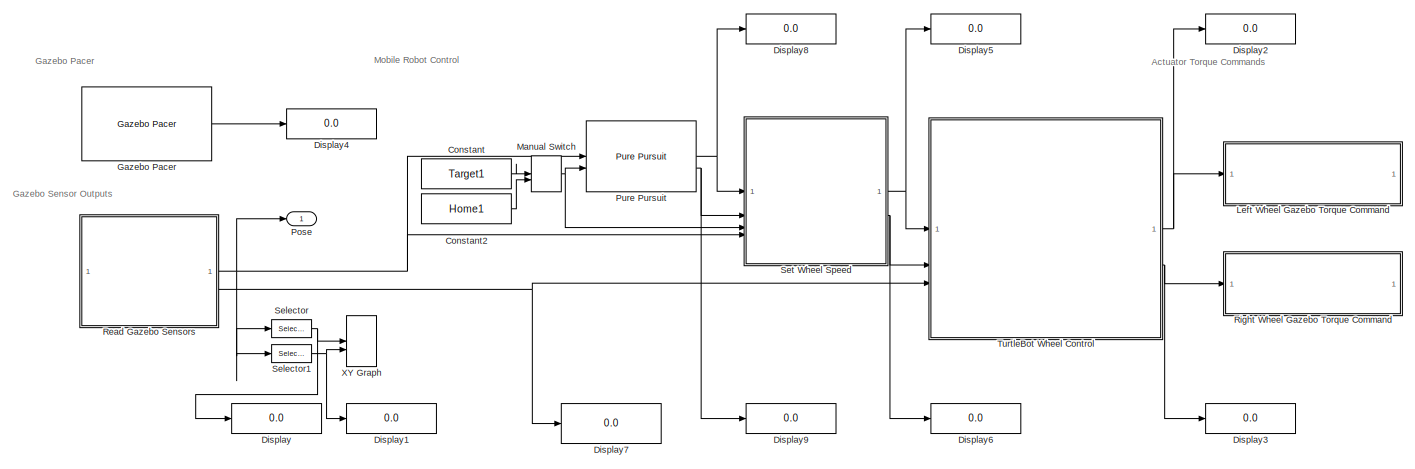
[diagram: root canvas - part 1/2, full width, top band]
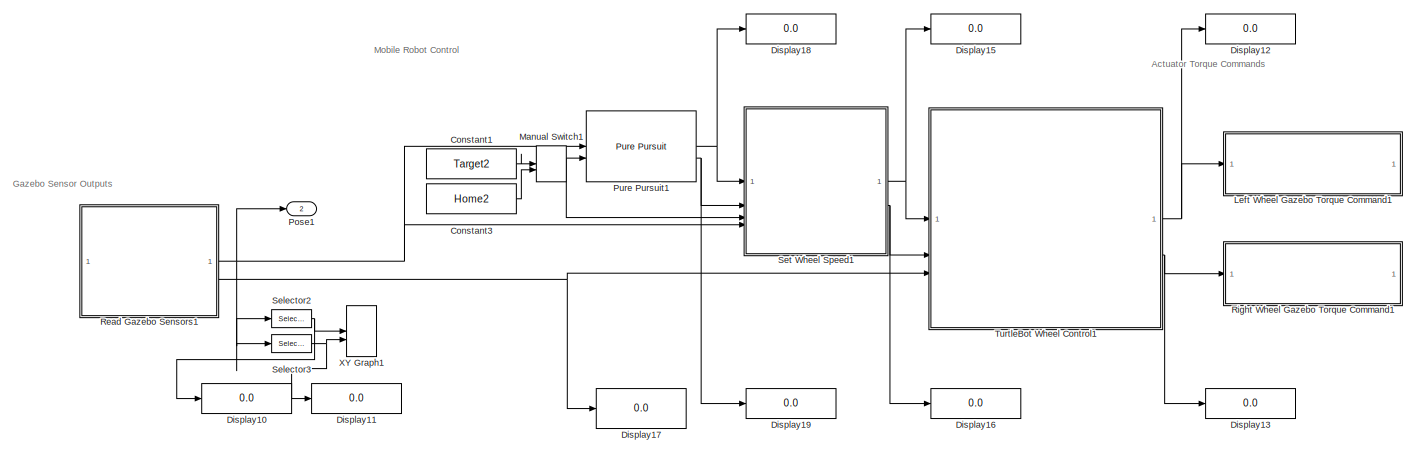
[diagram: root canvas - part 2/2, full width, bottom band]
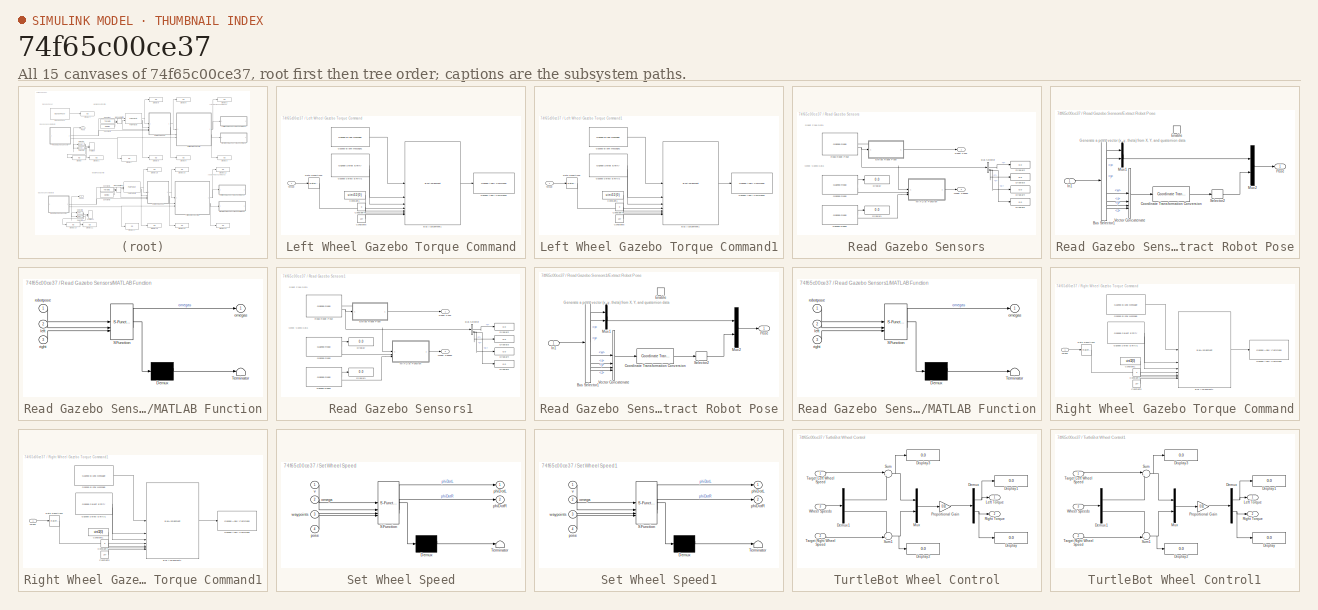
[diagram: thumbnail index - all 15 canvases of the model, root first then tree order]
MODEL slx_74f65c00ce37
KIND model
CONFIG AbsTol = auto
CONFIG EnableMultiTasking = off
CONFIG FixedStep = auto
CONFIG MaxStep = auto
CONFIG MinStep = auto
CONFIG RelTol = 1e-3
CONFIG SampleTimeConstraint = Unconstrained
CONFIG SolverName = VariableStepAuto
CONFIG StartTime = 0.0
CONFIG StopFcn = robotPoses = out.yout{1}.Values.Data;\n\nfigure;\nplot(waypoints(:,1), waypoints(:,2), 'k-x');\nhold all\nplot(robotPoses(:,1), robotPoses(:,2));\ntitle('XY Waypoint Tracking');\n
CONFIG StopTime = 50
BLOCK [Constant] Constant
  Value = Target1
BLOCK [Constant] Constant1
  Value = Target2
BLOCK [Constant] Constant2
  Value = Home1
BLOCK [Constant] Constant3
  Value = Home2
BLOCK [Display] Display
  Decimation = 1
BLOCK [Display] Display1
  Decimation = 1
BLOCK [Display] Display10
  Decimation = 1
BLOCK [Display] Display11
  Decimation = 1
BLOCK [Display] Display12
  Decimation = 1
BLOCK [Display] Display13
  Decimation = 1
BLOCK [Display] Display15
  Decimation = 1
BLOCK [Display] Display16
  Decimation = 1
BLOCK [Display] Display17
  Decimation = 1
BLOCK [Display] Display18
  Decimation = 1
BLOCK [Display] Display19
  Decimation = 1
BLOCK [Display] Display2
  Decimation = 1
BLOCK [Display] Display3
  Decimation = 1
BLOCK [Display] Display4
  Decimation = 1
BLOCK [Display] Display5
  Decimation = 1
BLOCK [Display] Display6
  Decimation = 1
BLOCK [Display] Display7
  Decimation = 1
BLOCK [Display] Display8
  Decimation = 1
BLOCK [Display] Display9
  Decimation = 1
BLOCK [Reference] Gazebo Pacer  REF=robotgazebolib/Gazebo Pacer
  SourceBlock = robotgazebolib/Gazebo Pacer
  SourceType = Gazebo Pacer
BLOCK [SubSystem] Left Wheel Gazebo Torque Command
BLOCK [BusAssignment] Left Wheel Gazebo Torque Command/Bus Assignment1
  AssignedSignals = model_name,joint_name,effort,index,duration.seconds,duration.nano_seconds
BLOCK [Constant] Left Wheel Gazebo Torque Command/Constant1
  Value = uint32(0)
BLOCK [Constant] Left Wheel Gazebo Torque Command/Constant4
  Value = 0
BLOCK [Constant] Left Wheel Gazebo Torque Command/Constant5
  Value = 1e7
BLOCK [Reference] Left Wheel Gazebo Torque Command/Gazebo Apply Command1  REF=robotgazebolib/Gazebo Apply Command
  SourceBlock = robotgazebolib/Gazebo Apply Command
  SourceType = Gazebo Apply Command
BLOCK [Reference] Left Wheel Gazebo Torque Command/Gazebo Blank Message1  REF=robotgazebolib/Gazebo Blank Message
  SourceBlock = robotgazebolib/Gazebo Blank Message
  SourceType = Gazebo Blank Message
BLOCK [Reference] Left Wheel Gazebo Torque Command/Gazebo Select Entity1  REF=robotgazebolib/Gazebo Select Entity
  SourceBlock = robotgazebolib/Gazebo Select Entity
  SourceType = Gazebo Select Entity
BLOCK [RateTransition] Left Wheel Gazebo Torque Command/Rate Transition2
BLOCK [Inport] Left Wheel Gazebo Torque Command/Torque
BLOCK [SubSystem] Left Wheel Gazebo Torque Command1
BLOCK [BusAssignment] Left Wheel Gazebo Torque Command1/Bus Assignment1
  AssignedSignals = model_name,joint_name,effort,index,duration.seconds,duration.nano_seconds
BLOCK [Constant] Left Wheel Gazebo Torque Command1/Constant1
  Value = uint32(0)
BLOCK [Constant] Left Wheel Gazebo Torque Command1/Constant4
  Value = 0
BLOCK [Constant] Left Wheel Gazebo Torque Command1/Constant5
  Value = 1e7
BLOCK [Reference] Left Wheel Gazebo Torque Command1/Gazebo Apply Command1  REF=robotgazebolib/Gazebo Apply Command
  SourceBlock = robotgazebolib/Gazebo Apply Command
  SourceType = Gazebo Apply Command
BLOCK [Reference] Left Wheel Gazebo Torque Command1/Gazebo Blank Message1  REF=robotgazebolib/Gazebo Blank Message
  SourceBlock = robotgazebolib/Gazebo Blank Message
  SourceType = Gazebo Blank Message
BLOCK [Reference] Left Wheel Gazebo Torque Command1/Gazebo Select Entity1  REF=robotgazebolib/Gazebo Select Entity
  SourceBlock = robotgazebolib/Gazebo Select Entity
  SourceType = Gazebo Select Entity
BLOCK [RateTransition] Left Wheel Gazebo Torque Command1/Rate Transition2
BLOCK [Inport] Left Wheel Gazebo Torque Command1/Torque
BLOCK [ManualSwitch] Manual Switch
  CurrentSetting = 0
  varsize = on
BLOCK [ManualSwitch] Manual Switch1
  CurrentSetting = 0
  varsize = on
BLOCK [Outport] Pose
BLOCK [Outport] Pose1
  Port = 2
BLOCK [Reference] Pure Pursuit  REF=robotalgslib/Pure Pursuit
  SourceBlock = robotalgslib/Pure Pursuit
  SourceType = nav.slalgs.internal.PurePursuit
BLOCK [Reference] Pure Pursuit1  REF=robotalgslib/Pure Pursuit
  SourceBlock = robotalgslib/Pure Pursuit
  SourceType = nav.slalgs.internal.PurePursuit
BLOCK [SubSystem] Read Gazebo Sensors
BLOCK [BusSelector] Read Gazebo Sensors/Bus Selector
  OutputSignals = orientation.x,orientation.y,orientation.z,orientation.w
BLOCK [Display] Read Gazebo Sensors/Display
  Decimation = 1
BLOCK [Display] Read Gazebo Sensors/Display1
  Decimation = 1
BLOCK [Display] Read Gazebo Sensors/Display2
  Decimation = 1
BLOCK [Display] Read Gazebo Sensors/Display3
  Decimation = 1
BLOCK [Display] Read Gazebo Sensors/Display4
  Decimation = 1
BLOCK [Display] Read Gazebo Sensors/Display5
  Decimation = 1
BLOCK [SubSystem] Read Gazebo Sensors/Extract Robot Pose
BLOCK [BusSelector] Read Gazebo Sensors/Extract Robot Pose/Bus Selector1
  OutputSignals = position.x,position.y,orientation.w,orientation.x,orientation.y,orientation.z
BLOCK [Reference] Read Gazebo Sensors/Extract Robot Pose/Coordinate Transformation Conversion  REF=robotcorelib/Coordinate Transformation Conversion
  SourceBlock = robotcorelib/Coordinate Transformation Conversion
  SourceType = robotics.slcore.internal.block.CoordinateTransformationConversion
BLOCK [EnablePort] Read Gazebo Sensors/Extract Robot Pose/Enable
BLOCK [Inport] Read Gazebo Sensors/Extract Robot Pose/In1
BLOCK [Mux] Read Gazebo Sensors/Extract Robot Pose/Mux1
  DisplayOption = bar
  Inputs = 2
BLOCK [Mux] Read Gazebo Sensors/Extract Robot Pose/Mux2
  DisplayOption = bar
  Inputs = 2
BLOCK [Outport] Read Gazebo Sensors/Extract Robot Pose/Pose
  VectorParamsAs1DForOutWhenUnconnected = off
BLOCK [Selector] Read Gazebo Sensors/Extract Robot Pose/Selector2
  IndexOptions = Index vector (dialog)
  Indices = 1
  InputPortWidth = 3
  OutputSizes = 1
BLOCK [Concatenate] Read Gazebo Sensors/Extract Robot Pose/Vector Concatenate
  NumInputs = 4
BLOCK [Reference] Read Gazebo Sensors/Gazebo Read  REF=robotgazebolib/Gazebo Read
  SourceBlock = robotgazebolib/Gazebo Read
  SourceType = Gazebo Read
BLOCK [Reference] Read Gazebo Sensors/Gazebo Read1  REF=robotgazebolib/Gazebo Read
  SourceBlock = robotgazebolib/Gazebo Read
  SourceType = Gazebo Read
BLOCK [SubSystem] Read Gazebo Sensors/MATLAB Function
  ErrorFcn = Stateflow.Translate.translate
  PermitHierarchicalResolution = ExplicitOnly
  SFBlockType = MATLAB Function
  TreatAsAtomicUnit = on
BLOCK [Demux] Read Gazebo Sensors/MATLAB Function/ Demux 
  Outputs = 1
BLOCK [S-Function] Read Gazebo Sensors/MATLAB Function/ SFunction 
  EnableBusSupport = on
  FunctionName = sf_sfun
  PortCounts = [3 2]
  SFcnIsStateOwnerBlock = off
  SFunctionDeploymentMode = off
  Tag = Stateflow S-Function 1
BLOCK [Terminator] Read Gazebo Sensors/MATLAB Function/ Terminator 
BLOCK [Inport] Read Gazebo Sensors/MATLAB Function/left
  Port = 2
BLOCK [Outport] Read Gazebo Sensors/MATLAB Function/omegas
BLOCK [Inport] Read Gazebo Sensors/MATLAB Function/right
  Port = 3
BLOCK [Inport] Read Gazebo Sensors/MATLAB Function/robotpose
BLOCK [Reference] Read Gazebo Sensors/Read Robot Pose  REF=robotgazebolib/Gazebo Read
  SourceBlock = robotgazebolib/Gazebo Read
  SourceType = Gazebo Read
BLOCK [Outport] Read Gazebo Sensors/Robot Pose
BLOCK [Outport] Read Gazebo Sensors/Wheel Speeds
  Port = 2
BLOCK [SubSystem] Read Gazebo Sensors1
BLOCK [BusSelector] Read Gazebo Sensors1/Bus Selector
  OutputSignals = orientation.x,orientation.y,orientation.z,orientation.w
BLOCK [Display] Read Gazebo Sensors1/Display
  Decimation = 1
BLOCK [Display] Read Gazebo Sensors1/Display1
  Decimation = 1
BLOCK [Display] Read Gazebo Sensors1/Display2
  Decimation = 1
BLOCK [Display] Read Gazebo Sensors1/Display3
  Decimation = 1
BLOCK [Display] Read Gazebo Sensors1/Display4
  Decimation = 1
BLOCK [Display] Read Gazebo Sensors1/Display5
  Decimation = 1
BLOCK [SubSystem] Read Gazebo Sensors1/Extract Robot Pose
BLOCK [BusSelector] Read Gazebo Sensors1/Extract Robot Pose/Bus Selector1
  OutputSignals = position.x,position.y,orientation.w,orientation.x,orientation.y,orientation.z
BLOCK [Reference] Read Gazebo Sensors1/Extract Robot Pose/Coordinate Transformation Conversion  REF=robotcorelib/Coordinate Transformation Conversion
  SourceBlock = robotcorelib/Coordinate Transformation Conversion
  SourceType = robotics.slcore.internal.block.CoordinateTransformationConversion
BLOCK [EnablePort] Read Gazebo Sensors1/Extract Robot Pose/Enable
BLOCK [Inport] Read Gazebo Sensors1/Extract Robot Pose/In1
BLOCK [Mux] Read Gazebo Sensors1/Extract Robot Pose/Mux1
  DisplayOption = bar
  Inputs = 2
BLOCK [Mux] Read Gazebo Sensors1/Extract Robot Pose/Mux2
  DisplayOption = bar
  Inputs = 2
BLOCK [Outport] Read Gazebo Sensors1/Extract Robot Pose/Pose
  VectorParamsAs1DForOutWhenUnconnected = off
BLOCK [Selector] Read Gazebo Sensors1/Extract Robot Pose/Selector2
  IndexOptions = Index vector (dialog)
  Indices = 1
  InputPortWidth = 3
  OutputSizes = 1
BLOCK [Concatenate] Read Gazebo Sensors1/Extract Robot Pose/Vector Concatenate
  NumInputs = 4
BLOCK [Reference] Read Gazebo Sensors1/Gazebo Read  REF=robotgazebolib/Gazebo Read
  SourceBlock = robotgazebolib/Gazebo Read
  SourceType = Gazebo Read
BLOCK [Reference] Read Gazebo Sensors1/Gazebo Read1  REF=robotgazebolib/Gazebo Read
  SourceBlock = robotgazebolib/Gazebo Read
  SourceType = Gazebo Read
BLOCK [SubSystem] Read Gazebo Sensors1/MATLAB Function
  ErrorFcn = Stateflow.Translate.translate
  PermitHierarchicalResolution = ExplicitOnly
  SFBlockType = MATLAB Function
  TreatAsAtomicUnit = on
BLOCK [Demux] Read Gazebo Sensors1/MATLAB Function/ Demux 
  Outputs = 1
BLOCK [S-Function] Read Gazebo Sensors1/MATLAB Function/ SFunction 
  EnableBusSupport = on
  FunctionName = sf_sfun
  PortCounts = [3 2]
  SFcnIsStateOwnerBlock = off
  SFunctionDeploymentMode = off
  Tag = Stateflow S-Function 3
BLOCK [Terminator] Read Gazebo Sensors1/MATLAB Function/ Terminator 
BLOCK [Inport] Read Gazebo Sensors1/MATLAB Function/left
  Port = 2
BLOCK [Outport] Read Gazebo Sensors1/MATLAB Function/omegas
BLOCK [Inport] Read Gazebo Sensors1/MATLAB Function/right
  Port = 3
BLOCK [Inport] Read Gazebo Sensors1/MATLAB Function/robotpose
BLOCK [Reference] Read Gazebo Sensors1/Read Robot Pose  REF=robotgazebolib/Gazebo Read
  SourceBlock = robotgazebolib/Gazebo Read
  SourceType = Gazebo Read
BLOCK [Outport] Read Gazebo Sensors1/Robot Pose
BLOCK [Outport] Read Gazebo Sensors1/Wheel Speeds
  Port = 2
BLOCK [SubSystem] Right Wheel Gazebo Torque Command
BLOCK [BusAssignment] Right Wheel Gazebo Torque Command/Bus Assignment1
  AssignedSignals = model_name,joint_name,effort,index,duration.seconds,duration.nano_seconds
BLOCK [Constant] Right Wheel Gazebo Torque Command/Constant1
  Value = uint32(0)
BLOCK [Constant] Right Wheel Gazebo Torque Command/Constant4
  Value = 0
BLOCK [Constant] Right Wheel Gazebo Torque Command/Constant5
  Value = 1e7
BLOCK [Reference] Right Wheel Gazebo Torque Command/Gazebo Apply Command  REF=robotgazebolib/Gazebo Apply Command
  SourceBlock = robotgazebolib/Gazebo Apply Command
  SourceType = Gazebo Apply Command
BLOCK [Reference] Right Wheel Gazebo Torque Command/Gazebo Blank Message  REF=robotgazebolib/Gazebo Blank Message
  SourceBlock = robotgazebolib/Gazebo Blank Message
  SourceType = Gazebo Blank Message
BLOCK [Reference] Right Wheel Gazebo Torque Command/Gazebo Select Entity1  REF=robotgazebolib/Gazebo Select Entity
  SourceBlock = robotgazebolib/Gazebo Select Entity
  SourceType = Gazebo Select Entity
BLOCK [RateTransition] Right Wheel Gazebo Torque Command/Rate Transition2
BLOCK [Inport] Right Wheel Gazebo Torque Command/Torque
BLOCK [SubSystem] Right Wheel Gazebo Torque Command1
BLOCK [BusAssignment] Right Wheel Gazebo Torque Command1/Bus Assignment1
  AssignedSignals = model_name,joint_name,effort,index,duration.seconds,duration.nano_seconds
BLOCK [Constant] Right Wheel Gazebo Torque Command1/Constant1
  Value = uint32(0)
BLOCK [Constant] Right Wheel Gazebo Torque Command1/Constant4
  Value = 0
BLOCK [Constant] Right Wheel Gazebo Torque Command1/Constant5
  Value = 1e7
BLOCK [Reference] Right Wheel Gazebo Torque Command1/Gazebo Apply Command  REF=robotgazebolib/Gazebo Apply Command
  SourceBlock = robotgazebolib/Gazebo Apply Command
  SourceType = Gazebo Apply Command
BLOCK [Reference] Right Wheel Gazebo Torque Command1/Gazebo Blank Message  REF=robotgazebolib/Gazebo Blank Message
  SourceBlock = robotgazebolib/Gazebo Blank Message
  SourceType = Gazebo Blank Message
BLOCK [Reference] Right Wheel Gazebo Torque Command1/Gazebo Select Entity1  REF=robotgazebolib/Gazebo Select Entity
  SourceBlock = robotgazebolib/Gazebo Select Entity
  SourceType = Gazebo Select Entity
BLOCK [RateTransition] Right Wheel Gazebo Torque Command1/Rate Transition2
BLOCK [Inport] Right Wheel Gazebo Torque Command1/Torque
BLOCK [Selector] Selector
  IndexOptions = Index vector (dialog)
  Indices = [1]
  InputPortWidth = 3
  OutputSizes = 1
BLOCK [Selector] Selector1
  IndexOptions = Index vector (dialog)
  Indices = [2]
  InputPortWidth = 3
  OutputSizes = 1
BLOCK [Selector] Selector2
  IndexOptions = Index vector (dialog)
  Indices = [1]
  InputPortWidth = 3
  OutputSizes = 1
BLOCK [Selector] Selector3
  IndexOptions = Index vector (dialog)
  Indices = [2]
  InputPortWidth = 3
  OutputSizes = 1
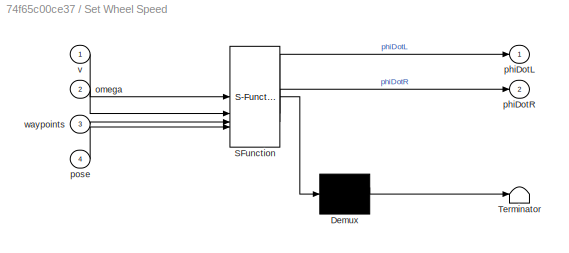
BLOCK [SubSystem] Set Wheel Speed
  ErrorFcn = Stateflow.Translate.translate
  PermitHierarchicalResolution = ExplicitOnly
  SFBlockType = MATLAB Function
  TreatAsAtomicUnit = on
BLOCK [Demux] Set Wheel Speed/ Demux 
  Outputs = 1
BLOCK [S-Function] Set Wheel Speed/ SFunction 
  EnableBusSupport = on
  FunctionName = sf_sfun
  PortCounts = [4 3]
  SFcnIsStateOwnerBlock = off
  SFunctionDeploymentMode = off
  Tag = Stateflow S-Function 2
BLOCK [Terminator] Set Wheel Speed/ Terminator 
BLOCK [Inport] Set Wheel Speed/omega
  Port = 2
BLOCK [Outport] Set Wheel Speed/phiDotL
BLOCK [Outport] Set Wheel Speed/phiDotR
  Port = 2
BLOCK [Inport] Set Wheel Speed/pose
  Port = 4
BLOCK [Inport] Set Wheel Speed/v
BLOCK [Inport] Set Wheel Speed/waypoints
  Port = 3
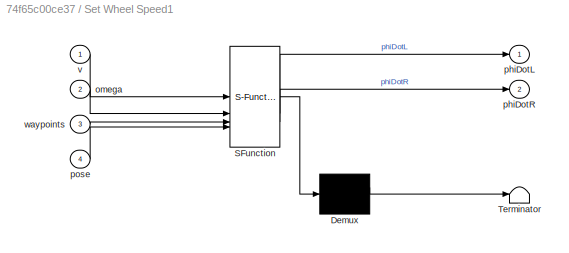
BLOCK [SubSystem] Set Wheel Speed1
  ErrorFcn = Stateflow.Translate.translate
  PermitHierarchicalResolution = ExplicitOnly
  SFBlockType = MATLAB Function
  TreatAsAtomicUnit = on
BLOCK [Demux] Set Wheel Speed1/ Demux 
  Outputs = 1
BLOCK [S-Function] Set Wheel Speed1/ SFunction 
  EnableBusSupport = on
  FunctionName = sf_sfun
  PortCounts = [4 3]
  SFcnIsStateOwnerBlock = off
  SFunctionDeploymentMode = off
  Tag = Stateflow S-Function 4
BLOCK [Terminator] Set Wheel Speed1/ Terminator 
BLOCK [Inport] Set Wheel Speed1/omega
  Port = 2
BLOCK [Outport] Set Wheel Speed1/phiDotL
BLOCK [Outport] Set Wheel Speed1/phiDotR
  Port = 2
BLOCK [Inport] Set Wheel Speed1/pose
  Port = 4
BLOCK [Inport] Set Wheel Speed1/v
BLOCK [Inport] Set Wheel Speed1/waypoints
  Port = 3
BLOCK [SubSystem] TurtleBot Wheel Control
BLOCK [Demux] TurtleBot Wheel Control/Demux
  Outputs = 2
BLOCK [Demux] TurtleBot Wheel Control/Demux1
  Outputs = 2
BLOCK [Display] TurtleBot Wheel Control/Display
  Decimation = 1
BLOCK [Display] TurtleBot Wheel Control/Display1
  Decimation = 1
BLOCK [Display] TurtleBot Wheel Control/Display2
  Decimation = 1
BLOCK [Display] TurtleBot Wheel Control/Display3
  Decimation = 1
BLOCK [Outport] TurtleBot Wheel Control/Left Torque
BLOCK [Mux] TurtleBot Wheel Control/Mux
  DisplayOption = bar
  Inputs = 2
BLOCK [Gain] TurtleBot Wheel Control/Proportional Gain
  Gain = 0.02
BLOCK [Outport] TurtleBot Wheel Control/Right Torque
  Port = 2
BLOCK [Sum] TurtleBot Wheel Control/Sum
  Inputs = |+-
BLOCK [Sum] TurtleBot Wheel Control/Sum1
  Inputs = -+|
BLOCK [Inport] TurtleBot Wheel Control/Target Left Wheel Speed
BLOCK [Inport] TurtleBot Wheel Control/Target Right Wheel Speed
  Port = 2
BLOCK [Inport] TurtleBot Wheel Control/Wheel Speeds
  Port = 3
BLOCK [SubSystem] TurtleBot Wheel Control1
BLOCK [Demux] TurtleBot Wheel Control1/Demux
  Outputs = 2
BLOCK [Demux] TurtleBot Wheel Control1/Demux1
  Outputs = 2
BLOCK [Display] TurtleBot Wheel Control1/Display
  Decimation = 1
BLOCK [Display] TurtleBot Wheel Control1/Display1
  Decimation = 1
BLOCK [Display] TurtleBot Wheel Control1/Display2
  Decimation = 1
BLOCK [Display] TurtleBot Wheel Control1/Display3
  Decimation = 1
BLOCK [Outport] TurtleBot Wheel Control1/Left Torque
BLOCK [Mux] TurtleBot Wheel Control1/Mux
  DisplayOption = bar
  Inputs = 2
BLOCK [Gain] TurtleBot Wheel Control1/Proportional Gain
  Gain = 0.02
BLOCK [Outport] TurtleBot Wheel Control1/Right Torque
  Port = 2
BLOCK [Sum] TurtleBot Wheel Control1/Sum
  Inputs = |+-
BLOCK [Sum] TurtleBot Wheel Control1/Sum1
  Inputs = -+|
BLOCK [Inport] TurtleBot Wheel Control1/Target Left Wheel Speed
BLOCK [Inport] TurtleBot Wheel Control1/Target Right Wheel Speed
  Port = 2
BLOCK [Inport] TurtleBot Wheel Control1/Wheel Speeds
  Port = 3
BLOCK [Record] XY Graph
  CompatibilityTag = XY
  FileSettingsInternal = {"entries":[{"content":{"excelSettings":{"content":{},"type":"Streamout.ExcelSettings"}},"type":"Streamout.FileSettingStorage","uuid":"9b76d6df-f2ee-41ae-a897-859777477549"}],"packageUris":["http://schema.mathworks.com/mf0/streamout_blocks/R2020a"],"version":"1.0"}
  Layout = [1 1]
  SignalsInternal = {"entries":[{"content":{"signals":[{"content":{"blockPath":["TurtleBot3_GazeboDifferentialDriveControl/XY Graph"],"channel":[],"dimensions":[1],"domain":"TurtleBot3_GazeboDifferentialDriveControl/XY Graph","lineColor":"#a2142f","plots":[1],"port":1,"sid":[""],"signalID":45,"signalName":"Selector"},"type":"RecordBlkView.Signal","uuid":"7043024c-e0bb-448a-8998-882d1dee7e41"},{"content":{"blockPath":...<+494ch>
  VisualizationBindings = {"xyplotplugin":{"info":[{"series":[{"bindingParametersList":[{"parameter":"X-Axis","signalID":45,"signalName":"Selector"},{"parameter":"Y-Axis","signalID":49,"signalName":"Selector1"}],"seriesID":8786}],"subplotID":1}]}}
  st = -1
BLOCK [Record] XY Graph1
  CompatibilityTag = XY
  FileSettingsInternal = {"entries":[{"content":{"excelSettings":{"content":{},"type":"Streamout.ExcelSettings"}},"type":"Streamout.FileSettingStorage","uuid":"365f15dd-1235-4737-b409-36fc80b55155"}],"packageUris":["http://schema.mathworks.com/mf0/streamout_blocks/R2020a"],"version":"1.0"}
  Layout = [1 1]
  SignalsInternal = {"entries":[{"content":{"signals":[{"content":{"blockPath":["TurtleBot3_GazeboDifferentialDriveControl/XY Graph1"],"channel":[],"dimensions":[1],"domain":"TurtleBot3_GazeboDifferentialDriveControl/XY Graph1","lineColor":"#0072bd","plots":[1],"port":1,"sid":[""],"signalID":71,"signalName":"Selector2"},"type":"RecordBlkView.Signal","uuid":"75e92f67-50e1-4949-aba3-fae04aa0850f"},{"content":{"blockPat...<+499ch>
  VisualizationBindings = {"xyplotplugin":{"info":[{"series":[{"bindingParametersList":[{"parameter":"X-Axis","signalID":71,"signalName":"Selector2"},{"parameter":"Y-Axis","signalID":75,"signalName":"Selector3"}],"seriesID":2754}],"subplotID":1}]}}
  st = -1
ANNOTATION (root): Actuator Torque Commands
ANNOTATION (root): Gazebo Pacer
ANNOTATION (root): Gazebo Sensor Outputs
ANNOTATION (root): Mobile Robot Control
ANNOTATION Read Gazebo Sensors: Robot Pose Data
ANNOTATION Read Gazebo Sensors: Wheel Speed Data
ANNOTATION Read Gazebo Sensors/Extract Robot Pose: Generate a pose vector (x, y, theta) from X, Y, and quaternion data
ANNOTATION Read Gazebo Sensors1: Robot Pose Data
ANNOTATION Read Gazebo Sensors1: Wheel Speed Data
ANNOTATION Read Gazebo Sensors1/Extract Robot Pose: Generate a pose vector (x, y, theta) from X, Y, and quaternion data
LINE Constant1:1 -> Manual Switch1:1
LINE Constant2:1 -> Manual Switch:2
LINE Constant3:1 -> Manual Switch1:2
LINE Constant:1 -> Manual Switch:1
LINE Gazebo Pacer:1 -> Display4:1
LINE Left Wheel Gazebo Torque Command/Bus Assignment1:1 -> Left Wheel Gazebo Torque Command/Gazebo Apply Command1:1
LINE Left Wheel Gazebo Torque Command/Constant1:1 -> Left Wheel Gazebo Torque Command/Bus Assignment1:5
LINE Left Wheel Gazebo Torque Command/Constant4:1 -> Left Wheel Gazebo Torque Command/Bus Assignment1:6
LINE Left Wheel Gazebo Torque Command/Constant5:1 -> Left Wheel Gazebo Torque Command/Bus Assignment1:7
LINE Left Wheel Gazebo Torque Command/Gazebo Blank Message1:1 -> Left Wheel Gazebo Torque Command/Bus Assignment1:1
LINE Left Wheel Gazebo Torque Command/Gazebo Select Entity1:1 -> Left Wheel Gazebo Torque Command/Bus Assignment1:2
LINE Left Wheel Gazebo Torque Command/Gazebo Select Entity1:2 -> Left Wheel Gazebo Torque Command/Bus Assignment1:3
LINE Left Wheel Gazebo Torque Command/Rate Transition2:1 -> Left Wheel Gazebo Torque Command/Bus Assignment1:4
LINE Left Wheel Gazebo Torque Command/Torque:1 -> Left Wheel Gazebo Torque Command/Rate Transition2:1
LINE Left Wheel Gazebo Torque Command1/Bus Assignment1:1 -> Left Wheel Gazebo Torque Command1/Gazebo Apply Command1:1
LINE Left Wheel Gazebo Torque Command1/Constant1:1 -> Left Wheel Gazebo Torque Command1/Bus Assignment1:5
LINE Left Wheel Gazebo Torque Command1/Constant4:1 -> Left Wheel Gazebo Torque Command1/Bus Assignment1:6
LINE Left Wheel Gazebo Torque Command1/Constant5:1 -> Left Wheel Gazebo Torque Command1/Bus Assignment1:7
LINE Left Wheel Gazebo Torque Command1/Gazebo Blank Message1:1 -> Left Wheel Gazebo Torque Command1/Bus Assignment1:1
LINE Left Wheel Gazebo Torque Command1/Gazebo Select Entity1:1 -> Left Wheel Gazebo Torque Command1/Bus Assignment1:2
LINE Left Wheel Gazebo Torque Command1/Gazebo Select Entity1:2 -> Left Wheel Gazebo Torque Command1/Bus Assignment1:3
LINE Left Wheel Gazebo Torque Command1/Rate Transition2:1 -> Left Wheel Gazebo Torque Command1/Bus Assignment1:4
LINE Left Wheel Gazebo Torque Command1/Torque:1 -> Left Wheel Gazebo Torque Command1/Rate Transition2:1
NET Manual Switch1:1 -> Pure Pursuit1:2, Set Wheel Speed1:3
NET Manual Switch:1 -> Pure Pursuit:2, Set Wheel Speed:3
NET Pure Pursuit1:1 -> Display18:1, Set Wheel Speed1:1
NET Pure Pursuit1:2 -> Display19:1, Set Wheel Speed1:2
NET Pure Pursuit:1 -> Display8:1, Set Wheel Speed:1
NET Pure Pursuit:2 -> Display9:1, Set Wheel Speed:2
LINE Read Gazebo Sensors/Bus Selector:1 -> Read Gazebo Sensors/Display2:1
LINE Read Gazebo Sensors/Bus Selector:2 -> Read Gazebo Sensors/Display3:1
LINE Read Gazebo Sensors/Bus Selector:3 -> Read Gazebo Sensors/Display4:1
LINE Read Gazebo Sensors/Bus Selector:4 -> Read Gazebo Sensors/Display5:1
LINE Read Gazebo Sensors/Extract Robot Pose/Bus Selector1:1 -> Read Gazebo Sensors/Extract Robot Pose/Mux1:1
LINE Read Gazebo Sensors/Extract Robot Pose/Bus Selector1:2 -> Read Gazebo Sensors/Extract Robot Pose/Mux1:2
LINE Read Gazebo Sensors/Extract Robot Pose/Bus Selector1:3 -> Read Gazebo Sensors/Extract Robot Pose/Vector Concatenate:1
LINE Read Gazebo Sensors/Extract Robot Pose/Bus Selector1:4 -> Read Gazebo Sensors/Extract Robot Pose/Vector Concatenate:2
LINE Read Gazebo Sensors/Extract Robot Pose/Bus Selector1:5 -> Read Gazebo Sensors/Extract Robot Pose/Vector Concatenate:3
LINE Read Gazebo Sensors/Extract Robot Pose/Bus Selector1:6 -> Read Gazebo Sensors/Extract Robot Pose/Vector Concatenate:4
LINE Read Gazebo Sensors/Extract Robot Pose/Coordinate Transformation Conversion:1 -> Read Gazebo Sensors/Extract Robot Pose/Selector2:1
LINE Read Gazebo Sensors/Extract Robot Pose/In1:1 -> Read Gazebo Sensors/Extract Robot Pose/Bus Selector1:1
LINE Read Gazebo Sensors/Extract Robot Pose/Mux1:1 -> Read Gazebo Sensors/Extract Robot Pose/Mux2:1
LINE Read Gazebo Sensors/Extract Robot Pose/Mux2:1 -> Read Gazebo Sensors/Extract Robot Pose/Pose:1
LINE Read Gazebo Sensors/Extract Robot Pose/Selector2:1 -> Read Gazebo Sensors/Extract Robot Pose/Mux2:2
LINE Read Gazebo Sensors/Extract Robot Pose/Vector Concatenate:1 -> Read Gazebo Sensors/Extract Robot Pose/Coordinate Transformation Conversion:1
LINE Read Gazebo Sensors/Extract Robot Pose:1 -> Read Gazebo Sensors/Robot Pose:1
LINE Read Gazebo Sensors/Gazebo Read1:1 -> Read Gazebo Sensors/Display1:1
LINE Read Gazebo Sensors/Gazebo Read1:2 -> Read Gazebo Sensors/MATLAB Function:3
LINE Read Gazebo Sensors/Gazebo Read:1 -> Read Gazebo Sensors/Display:1
LINE Read Gazebo Sensors/Gazebo Read:2 -> Read Gazebo Sensors/MATLAB Function:2
LINE Read Gazebo Sensors/MATLAB Function:1 -> Read Gazebo Sensors/Wheel Speeds:1
LINE Read Gazebo Sensors/Read Robot Pose:1 -> Read Gazebo Sensors/Extract Robot Pose:enable
NET Read Gazebo Sensors/Read Robot Pose:2 -> Read Gazebo Sensors/Bus Selector:1, Read Gazebo Sensors/Extract Robot Pose:1, Read Gazebo Sensors/MATLAB Function:1
LINE Read Gazebo Sensors1/Bus Selector:1 -> Read Gazebo Sensors1/Display2:1
LINE Read Gazebo Sensors1/Bus Selector:2 -> Read Gazebo Sensors1/Display3:1
LINE Read Gazebo Sensors1/Bus Selector:3 -> Read Gazebo Sensors1/Display4:1
LINE Read Gazebo Sensors1/Bus Selector:4 -> Read Gazebo Sensors1/Display5:1
LINE Read Gazebo Sensors1/Extract Robot Pose/Bus Selector1:1 -> Read Gazebo Sensors1/Extract Robot Pose/Mux1:1
LINE Read Gazebo Sensors1/Extract Robot Pose/Bus Selector1:2 -> Read Gazebo Sensors1/Extract Robot Pose/Mux1:2
LINE Read Gazebo Sensors1/Extract Robot Pose/Bus Selector1:3 -> Read Gazebo Sensors1/Extract Robot Pose/Vector Concatenate:1
LINE Read Gazebo Sensors1/Extract Robot Pose/Bus Selector1:4 -> Read Gazebo Sensors1/Extract Robot Pose/Vector Concatenate:2
LINE Read Gazebo Sensors1/Extract Robot Pose/Bus Selector1:5 -> Read Gazebo Sensors1/Extract Robot Pose/Vector Concatenate:3
LINE Read Gazebo Sensors1/Extract Robot Pose/Bus Selector1:6 -> Read Gazebo Sensors1/Extract Robot Pose/Vector Concatenate:4
LINE Read Gazebo Sensors1/Extract Robot Pose/Coordinate Transformation Conversion:1 -> Read Gazebo Sensors1/Extract Robot Pose/Selector2:1
LINE Read Gazebo Sensors1/Extract Robot Pose/In1:1 -> Read Gazebo Sensors1/Extract Robot Pose/Bus Selector1:1
LINE Read Gazebo Sensors1/Extract Robot Pose/Mux1:1 -> Read Gazebo Sensors1/Extract Robot Pose/Mux2:1
LINE Read Gazebo Sensors1/Extract Robot Pose/Mux2:1 -> Read Gazebo Sensors1/Extract Robot Pose/Pose:1
LINE Read Gazebo Sensors1/Extract Robot Pose/Selector2:1 -> Read Gazebo Sensors1/Extract Robot Pose/Mux2:2
LINE Read Gazebo Sensors1/Extract Robot Pose/Vector Concatenate:1 -> Read Gazebo Sensors1/Extract Robot Pose/Coordinate Transformation Conversion:1
LINE Read Gazebo Sensors1/Extract Robot Pose:1 -> Read Gazebo Sensors1/Robot Pose:1
LINE Read Gazebo Sensors1/Gazebo Read1:1 -> Read Gazebo Sensors1/Display1:1
LINE Read Gazebo Sensors1/Gazebo Read1:2 -> Read Gazebo Sensors1/MATLAB Function:3
LINE Read Gazebo Sensors1/Gazebo Read:1 -> Read Gazebo Sensors1/Display:1
LINE Read Gazebo Sensors1/Gazebo Read:2 -> Read Gazebo Sensors1/MATLAB Function:2
LINE Read Gazebo Sensors1/MATLAB Function:1 -> Read Gazebo Sensors1/Wheel Speeds:1
LINE Read Gazebo Sensors1/Read Robot Pose:1 -> Read Gazebo Sensors1/Extract Robot Pose:enable
NET Read Gazebo Sensors1/Read Robot Pose:2 -> Read Gazebo Sensors1/Bus Selector:1, Read Gazebo Sensors1/Extract Robot Pose:1, Read Gazebo Sensors1/MATLAB Function:1
NET Read Gazebo Sensors1:1 -> Pose1:1, Pure Pursuit1:1, Selector2:1, Selector3:1, Set Wheel Speed1:4
NET Read Gazebo Sensors1:2 -> Display17:1, TurtleBot Wheel Control1:3
NET Read Gazebo Sensors:1 -> Pose:1, Pure Pursuit:1, Selector1:1, Selector:1, Set Wheel Speed:4
NET Read Gazebo Sensors:2 -> Display7:1, TurtleBot Wheel Control:3
LINE Right Wheel Gazebo Torque Command/Bus Assignment1:1 -> Right Wheel Gazebo Torque Command/Gazebo Apply Command:1
LINE Right Wheel Gazebo Torque Command/Constant1:1 -> Right Wheel Gazebo Torque Command/Bus Assignment1:5
LINE Right Wheel Gazebo Torque Command/Constant4:1 -> Right Wheel Gazebo Torque Command/Bus Assignment1:6
LINE Right Wheel Gazebo Torque Command/Constant5:1 -> Right Wheel Gazebo Torque Command/Bus Assignment1:7
LINE Right Wheel Gazebo Torque Command/Gazebo Blank Message:1 -> Right Wheel Gazebo Torque Command/Bus Assignment1:1
LINE Right Wheel Gazebo Torque Command/Gazebo Select Entity1:1 -> Right Wheel Gazebo Torque Command/Bus Assignment1:2
LINE Right Wheel Gazebo Torque Command/Gazebo Select Entity1:2 -> Right Wheel Gazebo Torque Command/Bus Assignment1:3
LINE Right Wheel Gazebo Torque Command/Rate Transition2:1 -> Right Wheel Gazebo Torque Command/Bus Assignment1:4
LINE Right Wheel Gazebo Torque Command/Torque:1 -> Right Wheel Gazebo Torque Command/Rate Transition2:1
LINE Right Wheel Gazebo Torque Command1/Bus Assignment1:1 -> Right Wheel Gazebo Torque Command1/Gazebo Apply Command:1
LINE Right Wheel Gazebo Torque Command1/Constant1:1 -> Right Wheel Gazebo Torque Command1/Bus Assignment1:5
LINE Right Wheel Gazebo Torque Command1/Constant4:1 -> Right Wheel Gazebo Torque Command1/Bus Assignment1:6
LINE Right Wheel Gazebo Torque Command1/Constant5:1 -> Right Wheel Gazebo Torque Command1/Bus Assignment1:7
LINE Right Wheel Gazebo Torque Command1/Gazebo Blank Message:1 -> Right Wheel Gazebo Torque Command1/Bus Assignment1:1
LINE Right Wheel Gazebo Torque Command1/Gazebo Select Entity1:1 -> Right Wheel Gazebo Torque Command1/Bus Assignment1:2
LINE Right Wheel Gazebo Torque Command1/Gazebo Select Entity1:2 -> Right Wheel Gazebo Torque Command1/Bus Assignment1:3
LINE Right Wheel Gazebo Torque Command1/Rate Transition2:1 -> Right Wheel Gazebo Torque Command1/Bus Assignment1:4
LINE Right Wheel Gazebo Torque Command1/Torque:1 -> Right Wheel Gazebo Torque Command1/Rate Transition2:1
NET Selector1:1 -> Display1:1, XY Graph:2
NET Selector2:1 -> Display10:1, XY Graph1:1
NET Selector3:1 -> Display11:1, XY Graph1:2
NET Selector:1 -> Display:1, XY Graph:1
NET Set Wheel Speed1:1 -> Display15:1, TurtleBot Wheel Control1:1
NET Set Wheel Speed1:2 -> Display16:1, TurtleBot Wheel Control1:2
NET Set Wheel Speed:1 -> Display5:1, TurtleBot Wheel Control:1
NET Set Wheel Speed:2 -> Display6:1, TurtleBot Wheel Control:2
LINE TurtleBot Wheel Control/Demux1:1 -> TurtleBot Wheel Control/Sum:2
LINE TurtleBot Wheel Control/Demux1:2 -> TurtleBot Wheel Control/Sum1:1
NET TurtleBot Wheel Control/Demux:1 -> TurtleBot Wheel Control/Display1:1, TurtleBot Wheel Control/Left Torque:1
NET TurtleBot Wheel Control/Demux:2 -> TurtleBot Wheel Control/Display:1, TurtleBot Wheel Control/Right Torque:1
LINE TurtleBot Wheel Control/Mux:1 -> TurtleBot Wheel Control/Proportional Gain:1
LINE TurtleBot Wheel Control/Proportional Gain:1 -> TurtleBot Wheel Control/Demux:1
NET TurtleBot Wheel Control/Sum1:1 -> TurtleBot Wheel Control/Display2:1, TurtleBot Wheel Control/Mux:2
NET TurtleBot Wheel Control/Sum:1 -> TurtleBot Wheel Control/Display3:1, TurtleBot Wheel Control/Mux:1
LINE TurtleBot Wheel Control/Target Left Wheel Speed:1 -> TurtleBot Wheel Control/Sum:1
LINE TurtleBot Wheel Control/Target Right Wheel Speed:1 -> TurtleBot Wheel Control/Sum1:2
LINE TurtleBot Wheel Control/Wheel Speeds:1 -> TurtleBot Wheel Control/Demux1:1
LINE TurtleBot Wheel Control1/Demux1:1 -> TurtleBot Wheel Control1/Sum:2
LINE TurtleBot Wheel Control1/Demux1:2 -> TurtleBot Wheel Control1/Sum1:1
NET TurtleBot Wheel Control1/Demux:1 -> TurtleBot Wheel Control1/Display1:1, TurtleBot Wheel Control1/Left Torque:1
NET TurtleBot Wheel Control1/Demux:2 -> TurtleBot Wheel Control1/Display:1, TurtleBot Wheel Control1/Right Torque:1
LINE TurtleBot Wheel Control1/Mux:1 -> TurtleBot Wheel Control1/Proportional Gain:1
LINE TurtleBot Wheel Control1/Proportional Gain:1 -> TurtleBot Wheel Control1/Demux:1
NET TurtleBot Wheel Control1/Sum1:1 -> TurtleBot Wheel Control1/Display2:1, TurtleBot Wheel Control1/Mux:2
NET TurtleBot Wheel Control1/Sum:1 -> TurtleBot Wheel Control1/Display3:1, TurtleBot Wheel Control1/Mux:1
LINE TurtleBot Wheel Control1/Target Left Wheel Speed:1 -> TurtleBot Wheel Control1/Sum:1
LINE TurtleBot Wheel Control1/Target Right Wheel Speed:1 -> TurtleBot Wheel Control1/Sum1:2
LINE TurtleBot Wheel Control1/Wheel Speeds:1 -> TurtleBot Wheel Control1/Demux1:1
NET TurtleBot Wheel Control1:1 -> Display12:1, Left Wheel Gazebo Torque Command1:1
NET TurtleBot Wheel Control1:2 -> Display13:1, Right Wheel Gazebo Torque Command1:1
NET TurtleBot Wheel Control:1 -> Display2:1, Left Wheel Gazebo Torque Command:1
NET TurtleBot Wheel Control:2 -> Display3:1, Right Wheel Gazebo Torque Command:1
note: NET lines group one-source signal fan-out (src -> all destinations, sorted); 1:1 wires keep LINE
CHART Read Gazebo Sensors/MATLAB Function states=1 transitions=1
  STATE_LABEL 'eML_blk_kernel()'
  STATE_LABEL 'SCRIPT:\nfunction omegas = computeWheelVelocities(robotpose, left, right)\n%computeWheelVelocities computes wheel velocity based on rate of change of\n%the yaw angle of the wheel relative to its original mount on the robot\n%body\n\npersistent initAngles\nif isempty(initAngles)\n    initAngles = zeros(2,1);\nend\nsampleTime = 0.01;\n\n% compute rotation between wheel original mount on the robot body and world...<+878ch>'
CHART Set Wheel Speed states=1 transitions=1
  STATE_LABEL 'eML_blk_kernel()'
  STATE_LABEL "SCRIPT:\nfunction [phiDotL, phiDotR] = wheelSpeed(v, omega, waypoints, pose)\n\n% Path constants\nstopThreshold = 0.1;\nslowThreshold = 0.3;\n\n% Robot constants\ntrackWidth = 0.142;%0.381;\nwheelRadius = 0.033;%0.195/2;\n\n% Slow the robot down when it's near the threshold\ndistanceToEndpoint = norm(waypoints(end, :) - pose(1:2)');\nif (distanceToEndpoint < slowThreshold)\n    v = distanceToEndpoint/slowThresh...<+304ch>"
CHART Read Gazebo Sensors1/MATLAB Function states=1 transitions=1
  STATE_LABEL 'eML_blk_kernel()'
  STATE_LABEL 'SCRIPT:\nfunction omegas = computeWheelVelocities(robotpose, left, right)\n%computeWheelVelocities computes wheel velocity based on rate of change of\n%the yaw angle of the wheel relative to its original mount on the robot\n%body\n\npersistent initAngles\nif isempty(initAngles)\n    initAngles = zeros(2,1);\nend\nsampleTime = 0.01;\n\n% compute rotation between wheel original mount on the robot body and world...<+878ch>'
CHART Set Wheel Speed1 states=1 transitions=1
  STATE_LABEL 'eML_blk_kernel()'
  STATE_LABEL "SCRIPT:\nfunction [phiDotL, phiDotR] = wheelSpeed(v, omega, waypoints, pose)\n\n% Path constants\nstopThreshold = 0.1;\nslowThreshold = 0.3;\n\n% Robot constants\ntrackWidth = 0.142;%0.381;\nwheelRadius = 0.033;%0.195/2;\n\n% Slow the robot down when it's near the threshold\ndistanceToEndpoint = norm(waypoints(end, :) - pose(1:2)');\nif (distanceToEndpoint < slowThreshold)\n    v = distanceToEndpoint/slowThresh...<+304ch>"
CHART  states=0 transitions=0
CHART  states=0 transitions=0
CHART  states=0 transitions=0
CHART  states=0 transitions=0
